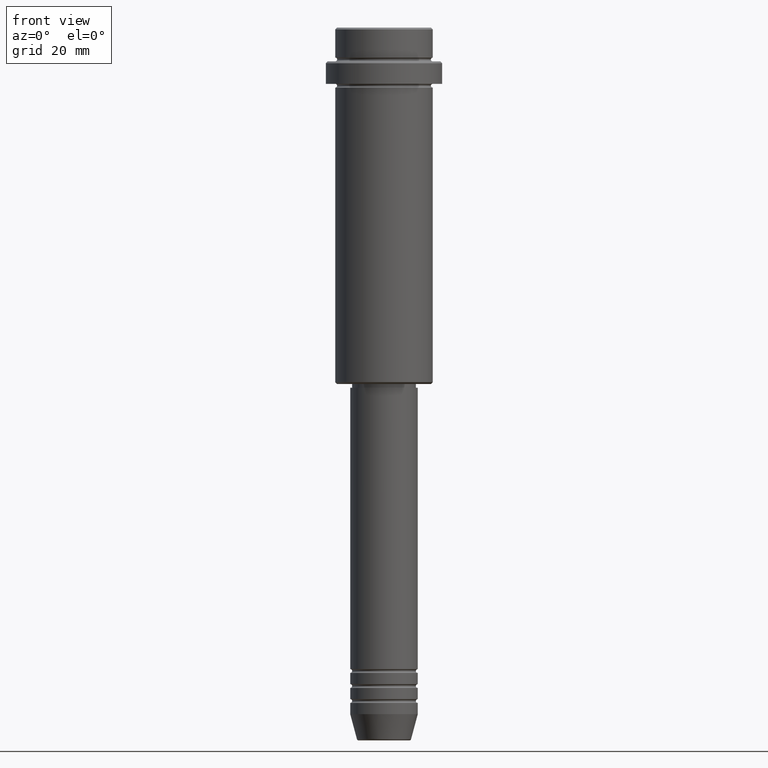
[diagram: clean part render]
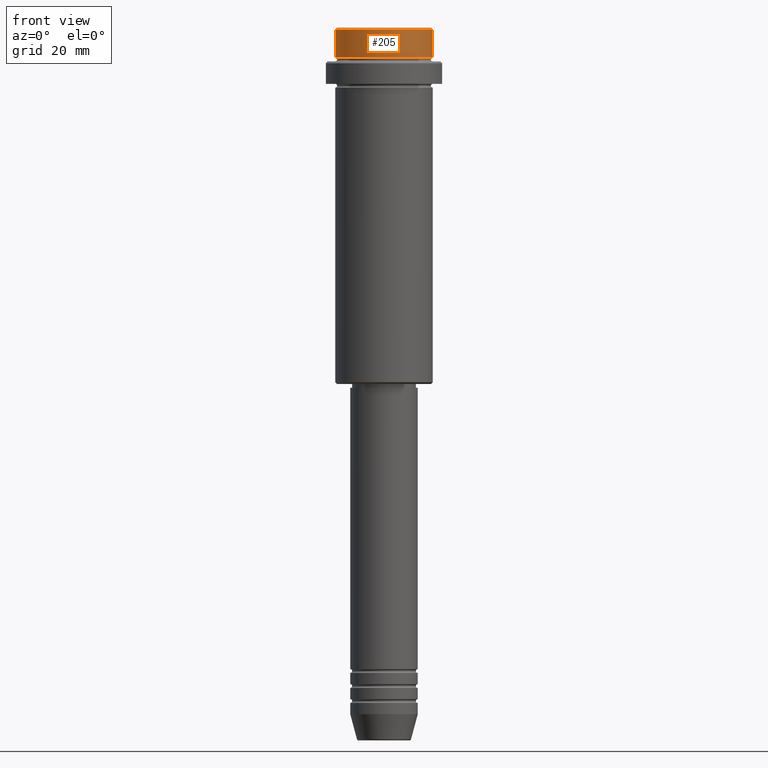
[diagram: same view with one face highlighted and labeled with its STEP entity id]
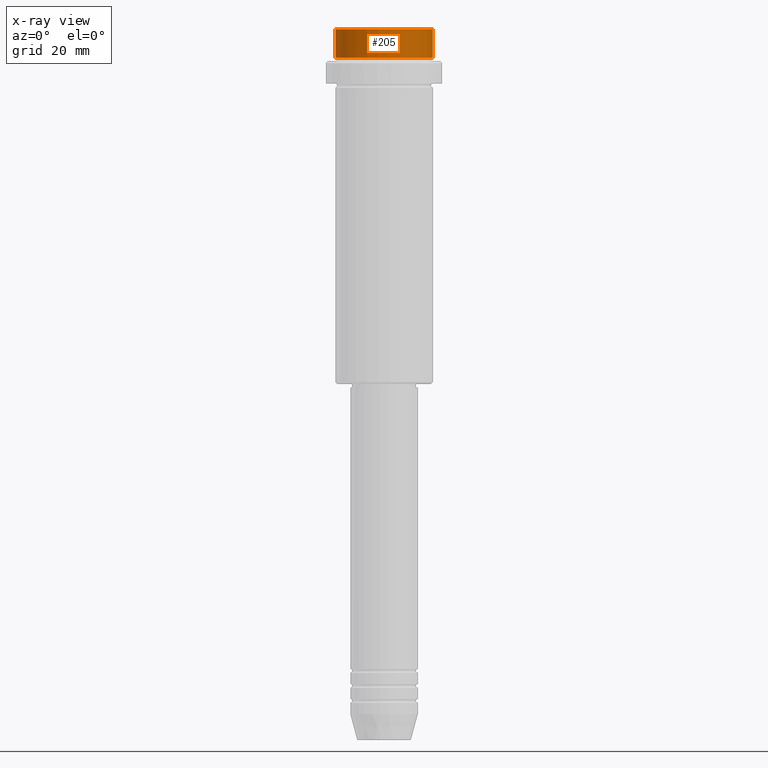
[diagram: x-ray of the same camera — body ghosted, the highlighted face saturated]
A machine part, front view. The second image highlights one B-rep face of the part: STEP entity #205.
The next image is the same camera in x-ray: the body ghosted, the highlighted face saturated — about 0% of this face is hidden behind the body in this view.
In plain terms, the highlighted cylindrical surface (partial cylindrical patch) has radius 13 mm, axis along (-0, -0, 1).
Its self-contained STEP definition (entity closure, byte-faithful):
#2 = VERTEX_POINT ( 'NONE', #265 ) ;
#45 = EDGE_CURVE ( 'NONE', #2, #1248, #303, .T. ) ;
#49 = VECTOR ( 'NONE', #821, 1000.000000000000000 ) ;
#100 = ORIENTED_EDGE ( 'NONE', *, *, #1364, .T. ) ;
#124 = ORIENTED_EDGE ( 'NONE', *, *, #362, .F. ) ;
#140 = DIRECTION ( 'NONE',  ( 1.000000000000000000, 0.000000000000000000, 0.000000000000000000 ) ) ;
#205 = ADVANCED_FACE ( 'NONE', ( #247 ), #1341, .T. ) ;
#247 = FACE_OUTER_BOUND ( 'NONE', #423, .T. ) ;
#259 = CARTESIAN_POINT ( 'NONE',  ( 0.000000000000000000, 0.000000000000000000, -0.4999999999999761302 ) ) ;
#265 = CARTESIAN_POINT ( 'NONE',  ( 12.99999999999999822, 0.000000000000000000, -7.999999999999998224 ) ) ;
#298 = DIRECTION ( 'NONE',  ( 0.000000000000000000, 0.000000000000000000, -1.000000000000000000 ) ) ;
#303 = LINE ( 'NONE', #551, #490 ) ;
#314 = CARTESIAN_POINT ( 'NONE',  ( -12.99999999999999822, 1.592040838891558898E-15, -0.4999999999999761302 ) ) ;
#362 = EDGE_CURVE ( 'NONE', #1262, #1386, #622, .T. ) ;
#408 = DIRECTION ( 'NONE',  ( 1.000000000000000000, 0.000000000000000000, 0.000000000000000000 ) ) ;
#420 = AXIS2_PLACEMENT_3D ( 'NONE', #575, #1124, #140 ) ;
#423 = EDGE_LOOP ( 'NONE', ( #124, #1207, #1023, #100 ) ) ;
#490 = VECTOR ( 'NONE', #1094, 1000.000000000000000 ) ;
#551 = CARTESIAN_POINT ( 'NONE',  ( 12.99999999999999822, 0.000000000000000000, 0.000000000000000000 ) ) ;
#575 = CARTESIAN_POINT ( 'NONE',  ( 0.000000000000000000, 0.000000000000000000, 0.000000000000000000 ) ) ;
#622 = LINE ( 'NONE', #728, #49 ) ;
#703 = CARTESIAN_POINT ( 'NONE',  ( -12.99999999999999822, 1.592040838891558898E-15, -7.999999999999998224 ) ) ;
#728 = CARTESIAN_POINT ( 'NONE',  ( -12.99999999999999822, 1.592040838891558898E-15, 0.000000000000000000 ) ) ;
#741 = AXIS2_PLACEMENT_3D ( 'NONE', #259, #298, #408 ) ;
#817 = CARTESIAN_POINT ( 'NONE',  ( 12.99999999999999822, 0.000000000000000000, -0.4999999999999761302 ) ) ;
#821 = DIRECTION ( 'NONE',  ( -0.000000000000000000, -0.000000000000000000, 1.000000000000000000 ) ) ;
#857 = CARTESIAN_POINT ( 'NONE',  ( 0.000000000000000000, 0.000000000000000000, -7.999999999999998224 ) ) ;
#923 = AXIS2_PLACEMENT_3D ( 'NONE', #857, #1416, #1191 ) ;
#1023 = ORIENTED_EDGE ( 'NONE', *, *, #45, .T. ) ;
#1032 = EDGE_CURVE ( 'NONE', #1262, #2, #1106, .T. ) ;
#1043 = CIRCLE ( 'NONE', #741, 12.99999999999999822 ) ;
#1094 = DIRECTION ( 'NONE',  ( -0.000000000000000000, -0.000000000000000000, 1.000000000000000000 ) ) ;
#1106 = CIRCLE ( 'NONE', #923, 12.99999999999999822 ) ;
#1124 = DIRECTION ( 'NONE',  ( -0.000000000000000000, -0.000000000000000000, 1.000000000000000000 ) ) ;
#1191 = DIRECTION ( 'NONE',  ( 1.000000000000000000, 0.000000000000000000, 0.000000000000000000 ) ) ;
#1207 = ORIENTED_EDGE ( 'NONE', *, *, #1032, .T. ) ;
#1248 = VERTEX_POINT ( 'NONE', #817 ) ;
#1262 = VERTEX_POINT ( 'NONE', #703 ) ;
#1341 = CYLINDRICAL_SURFACE ( 'NONE', #420, 12.99999999999999822 ) ;
#1364 = EDGE_CURVE ( 'NONE', #1248, #1386, #1043, .T. ) ;
#1386 = VERTEX_POINT ( 'NONE', #314 ) ;
#1416 = DIRECTION ( 'NONE',  ( -0.000000000000000000, -0.000000000000000000, 1.000000000000000000 ) ) ;